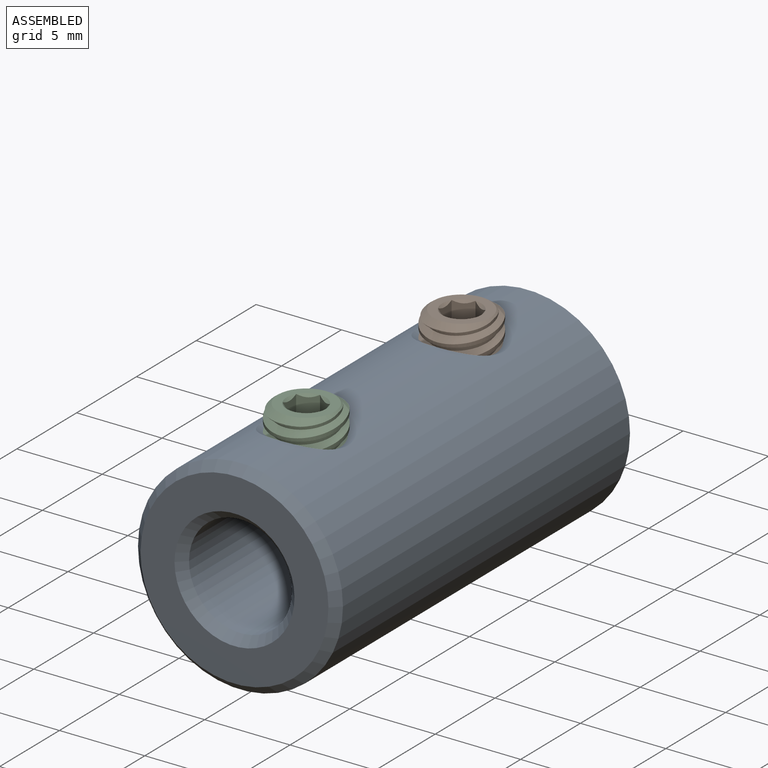
[diagram: assembled view]
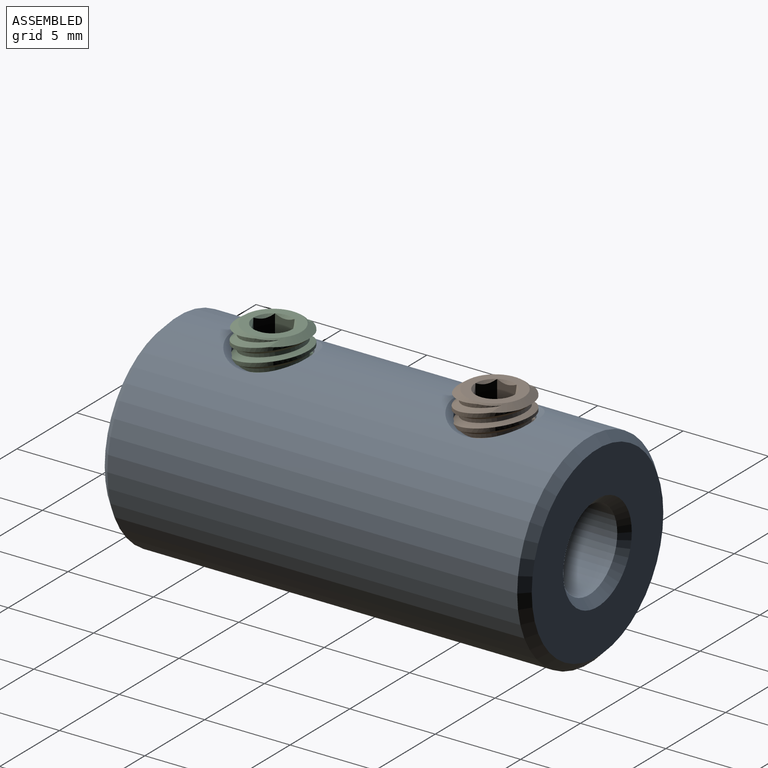
[diagram: assembled view, second angle]
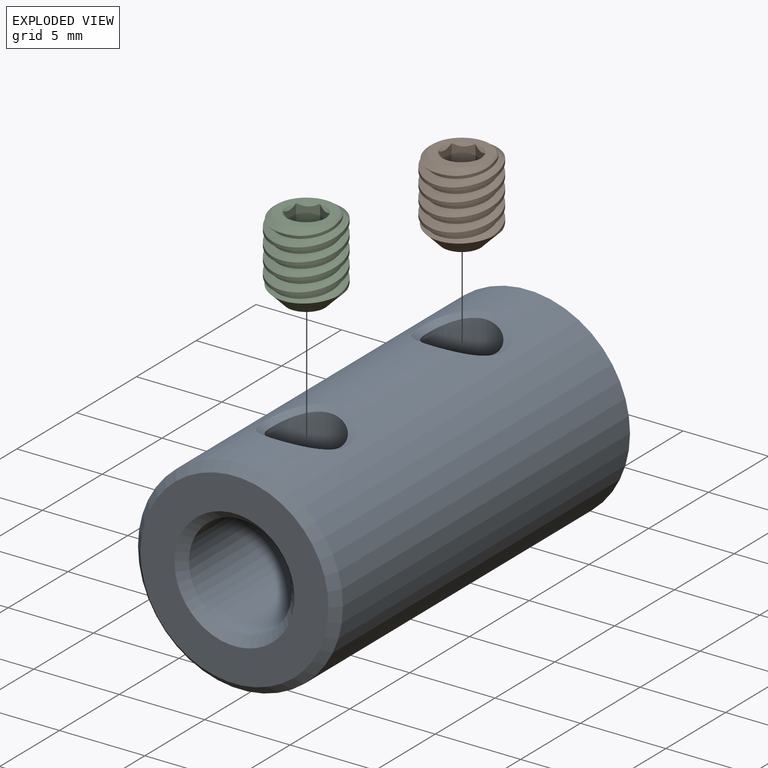
[diagram: exploded view]
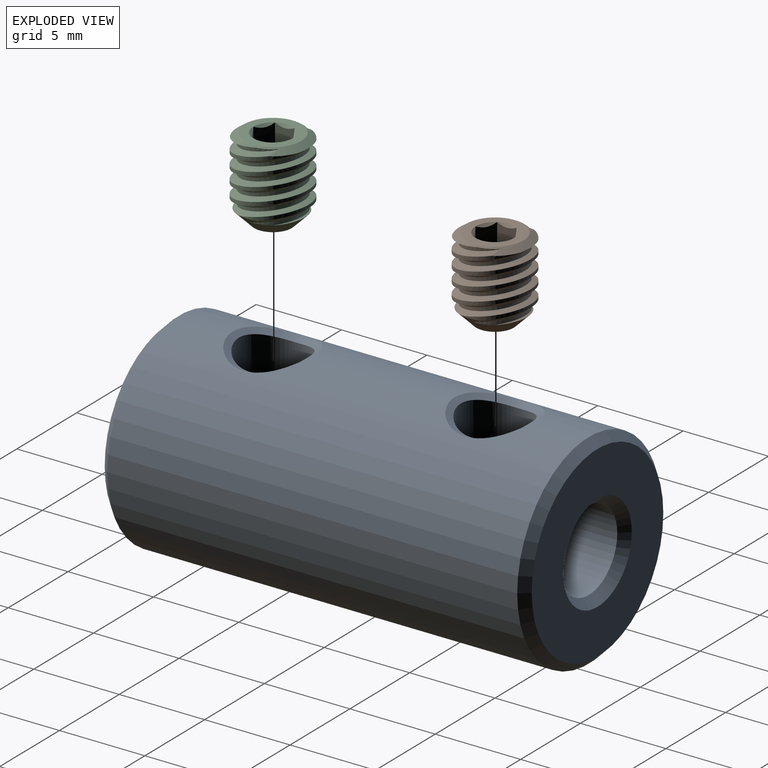
[diagram: exploded view, second angle]
ASSEMBLY  parts=3 mates=2
PART A: 14 faces, bbox 12x25x12 mm
  f0: bspline ~4.9x4.7mm, area 6.4mm2, adj f6,f10
  f1: bspline ~4.9x4.7mm, area 6.4mm2, adj f7,f10
  f2: cone r=3.01mm half-angle=45deg, axis (0,-1,0), area 14.5mm2, adj f9,f11
  f3: cone r=5.5mm half-angle=45deg, axis (0,1,0), area 25.5mm2, adj f10,f11
  f4: cone r=6mm half-angle=45deg, axis (0,-1,0), area 25.5mm2, adj f10,f12
  f5: cone r=2.86mm half-angle=45deg, axis (0,1,0), area 11.6mm2, adj f8,f12
  f6: cylinder r=2mm len=4mm, axis (0,0,-1), area 34.6mm2, adj f0,f9
  f7: cylinder r=2mm len=4mm, axis (0,0,-1), area 42.7mm2, adj f1,f8
  f8: cylinder r=2.36mm len=12mm, axis (0,-1,0), area 164.4mm2, adj f5,f7,f13
  f9: cylinder r=3.01mm len=12mm, axis (0,-1,0), area 213.9mm2, adj f2,f6,f13
  f10: cylinder r=6mm len=24mm, axis (0,1,0), area 867.9mm2, adj f0,f1,f3,f4
  f11: plane 11x11mm, normal (0,-1,0), area 56.3mm2, adj f2,f3
  f12: plane 11x11mm, normal (0,1,0), area 69.2mm2, adj f4,f5
  f13: plane 6.03x6.03mm, normal (0,-1,0), area 10.9mm2, adj f8,f9
PART B: 47 faces, bbox 4.8x5.3x4.9 mm
  f0: cone r=0.99mm half-angle=59deg, axis (0,-1,0), area 3.6mm2, adj f1,f42,f43,f44,f45,f46
  f1: plane 0.86x0.5mm, normal (0,-1,0), area 0.1mm2, adj f0,f2,f41
  f2: plane 1.26x1.25mm, normal (-1,0,0), area 1.2mm2, adj f1,f3,f40,f41,f42
  f3: plane 1.58x1.43mm, normal (-0.5,0,-0.87), area 1.2mm2, adj f2,f4,f39,f42,f43
  f4: plane 1.58x1.43mm, normal (0.5,0,-0.87), area 1.2mm2, adj f3,f5,f38,f43,f44
  f5: plane 1.58x1.58mm, normal (1,0,0), area 1.2mm2, adj f4,f6,f37,f44,f45
  f6: plane 1.58x1.43mm, normal (0.5,0,0.87), area 1.2mm2, adj f5,f7,f41,f45,f46
  f7: cone r=1.15mm half-angle=45deg, axis (0,-1,0), area 0mm2, adj f6,f8
  f8: plane 3.33x3.33mm, normal (0,-1,0), area 4.6mm2, adj f7,f9,f10,f37,f38,f39,f40
  f9: cone r=1.15mm half-angle=45deg, axis (0,-1,0), area 0mm2, adj f8,f41
  f10: cone r=2.08mm half-angle=55deg, axis (0,1,0), area 4.3mm2, adj f8,f11,f12,f13,f14,f15,f16
  f11: cylinder r=2.08mm len=1.94mm, axis (0,-1,0), area 0mm2, adj f10,f12
  f12: cone r=2.21mm half-angle=60deg, axis (0,-0.98,-0.19), area 1.4mm2, adj f10,f11,f13
  f13: cylinder r=1.78mm len=3.55mm, axis (0,0.98,0.19), area 1.4mm2, adj f10,f12,f14
  f14: cone r=1.78mm half-angle=60deg, axis (0,0.98,0.19), area 3.4mm2, adj f10,f13,f15
  f15: cylinder r=2.08mm len=4.17mm, axis (0,-1,0), area 2.1mm2, adj f10,f14,f16
  f16: cone r=2.21mm half-angle=60deg, axis (0,-0.98,-0.19), area 5mm2, adj f10,f15,f17
  f17: cylinder r=1.78mm len=3.55mm, axis (0,0.98,0.19), area 2.2mm2, adj f16,f18
  f18: cone r=1.78mm half-angle=60deg, axis (0,0.98,0.19), area 4.8mm2, adj f17,f19
  f19: cylinder r=2.08mm len=4.17mm, axis (0,-1,0), area 2.7mm2, adj f18,f20
  f20: cone r=2.21mm half-angle=60deg, axis (0,-0.98,-0.19), area 5mm2, adj f19,f21
  f21: cylinder r=1.78mm len=3.55mm, axis (0,0.98,0.19), area 2.2mm2, adj f20,f22
  f22: cone r=1.78mm half-angle=60deg, axis (0,0.98,0.19), area 4.8mm2, adj f21,f23
  f23: cylinder r=2.08mm len=4.17mm, axis (0,-1,0), area 2.7mm2, adj f22,f24
  f24: cone r=2.21mm half-angle=60deg, axis (0,-0.98,-0.19), area 5mm2, adj f23,f25
  f25: cylinder r=1.78mm len=3.55mm, axis (0,0.98,0.19), area 2.2mm2, adj f24,f26
  f26: cone r=1.78mm half-angle=60deg, axis (0,0.98,0.19), area 4.8mm2, adj f25,f27
  f27: cylinder r=2.08mm len=4.17mm, axis (0,-1,0), area 2.7mm2, adj f26,f28
  f28: cone r=2.21mm half-angle=60deg, axis (0,-0.98,-0.19), area 5mm2, adj f27,f29
  f29: cylinder r=1.78mm len=3.55mm, axis (0,0.98,0.19), area 2.2mm2, adj f28,f30
  f30: cone r=1.78mm half-angle=60deg, axis (0,0.98,0.19), area 4mm2, adj f29,f31,f36
  f31: cone r=1.1mm half-angle=45deg, axis (0,-1,0), area 11mm2, adj f30,f32,f33,f34,f35,f36
  f32: cone r=1.78mm half-angle=60deg, axis (0,0.98,0.19), area 0.2mm2, adj f31,f33
  f33: cylinder r=1.78mm len=3.55mm, axis (0,0.98,0.19), area 0.9mm2, adj f31,f32,f34
  f34: cone r=2.21mm half-angle=60deg, axis (0,-0.98,-0.19), area 2.1mm2, adj f31,f33,f36
  f35: cone r=1664.28mm half-angle=59deg, axis (0,1,0), area 4.5mm2, adj f31
  f36: cylinder r=2.08mm len=4.17mm, axis (0,-1,0), area 2mm2, adj f30,f31,f34
  f37: cone r=1.15mm half-angle=45deg, axis (0,-1,0), area 0mm2, adj f5,f8
  f38: cone r=1.15mm half-angle=45deg, axis (0,-1,0), area 0mm2, adj f4,f8
  f39: cone r=1.15mm half-angle=45deg, axis (0,-1,0), area 0mm2, adj f3,f8
  f40: cone r=1.15mm half-angle=45deg, axis (0,-1,0), area 0.1mm2, adj f2,f8
  f41: plane 1.58x1.43mm, normal (-0.5,0,0.87), area 1.2mm2, adj f1,f2,f6,f9,f46
  f42: plane 0.86x0.5mm, normal (0,-1,0), area 0.1mm2, adj f0,f2,f3
  f43: plane 0.99x0.29mm, normal (0,-1,0), area 0.1mm2, adj f0,f3,f4
  f44: plane 0.86x0.5mm, normal (0,-1,0), area 0.1mm2, adj f0,f4,f5
  f45: plane 0.86x0.5mm, normal (0,-1,0), area 0.1mm2, adj f0,f5,f6
  f46: plane 0.99x0.29mm, normal (0,-1,0), area 0.1mm2, adj f0,f6,f41
PART C: same geometry as B
PLACE A t=(0,0,1.05)mm
PLACE B rot(axis=(-1,0,0),90deg) t=(0,6.5,6.06)mm
PLACE C rot(axis=(-1,0,0),90deg) t=(0,-6.5,6.06)mm
MATE fastened A.f7 <-> B.f35  axis (0,0,-1) through (0,6.5,6.84)mm
MATE fastened A.f6 <-> C.f35  axis (0,0,-1) through (0,-6.5,6.84)mm
